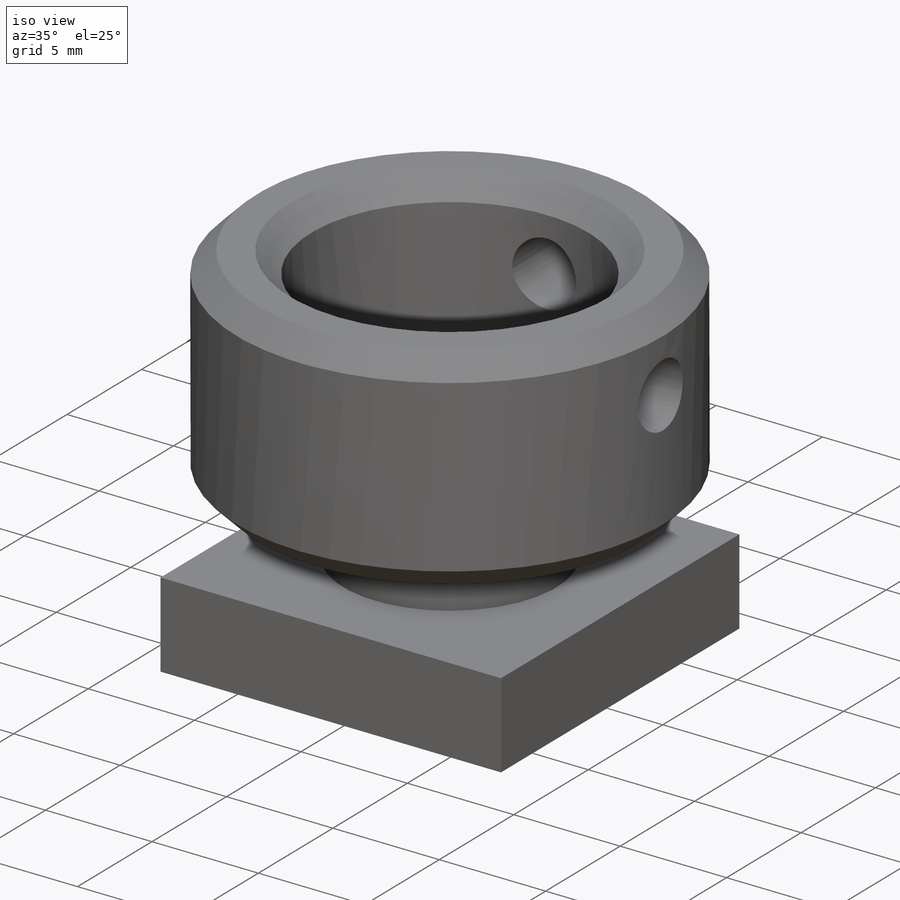
[diagram: iso view]
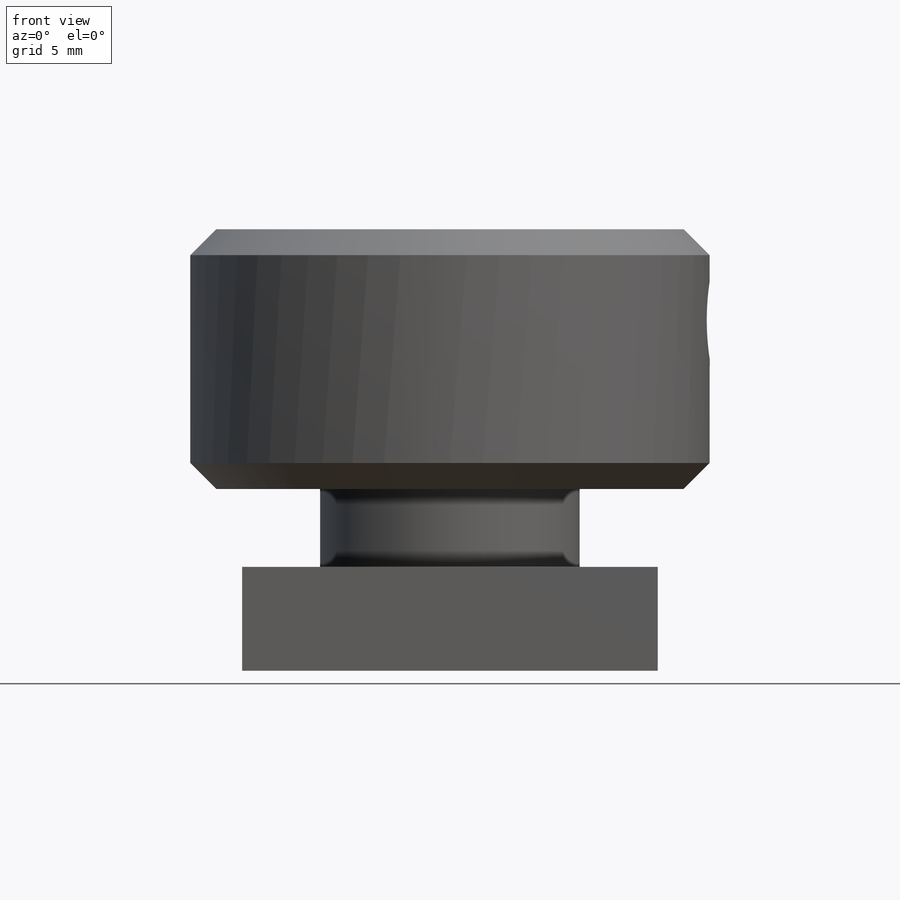
[diagram: front view]
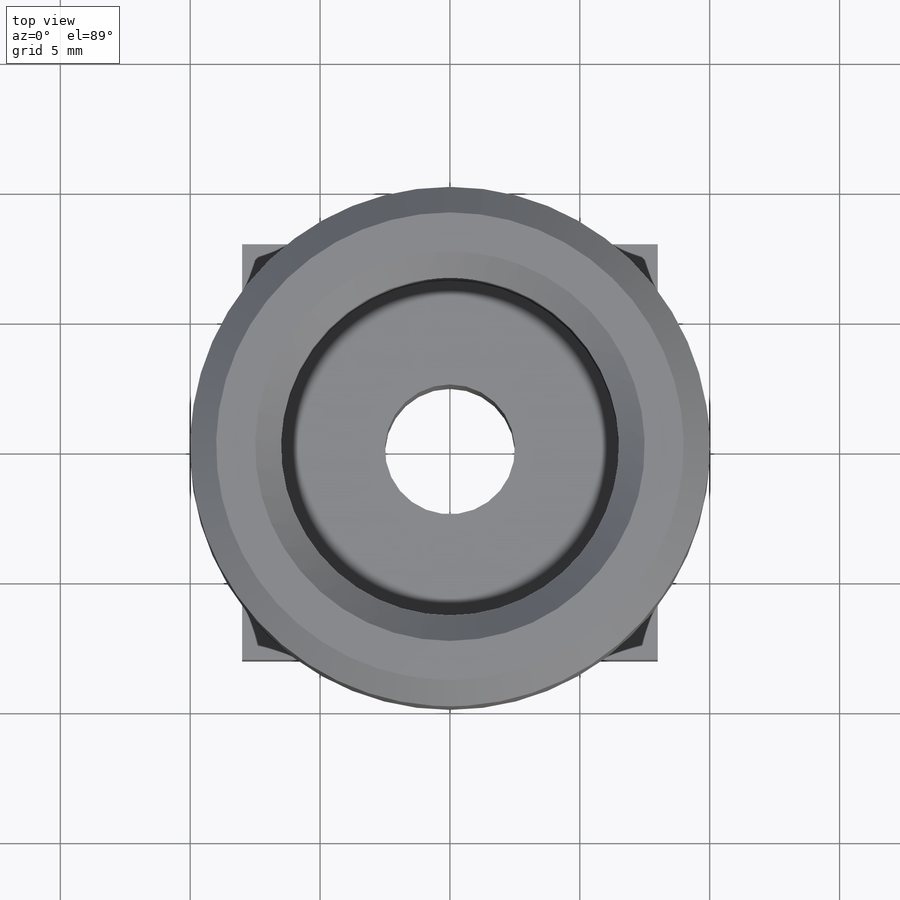
[diagram: top view]
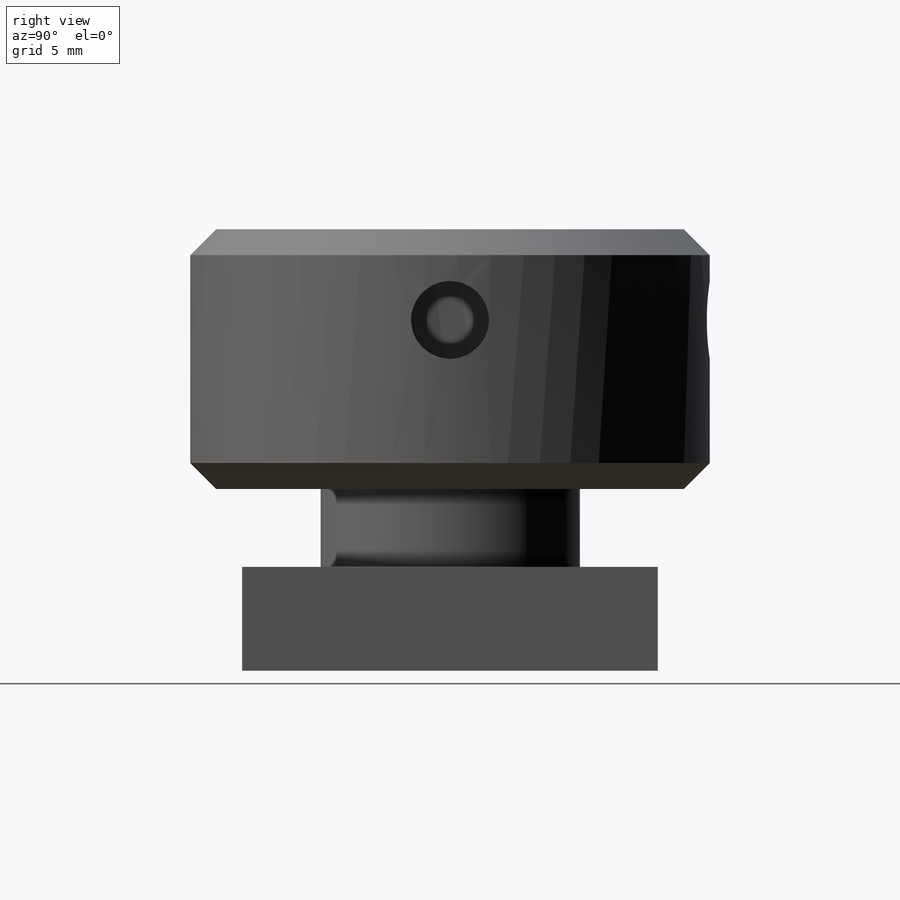
[diagram: right view]
SOLIDWORKS PART (.sldprt)
format: sldprt  version: not decoded by parser v0  size: 223,232 bytes
history: native  units: mm
features: sketch x4, chamfer x2, material x1, revolve x1, hole x1, extrude x1 (+15 scaffold rows collapsed)
feature tree (25):
  scaffold x15  (default folders/planes/origin — collapsed)
  material  "1060 Alloy"
  sketch  "Sketch1"  dims[c1.D1=2.5mm c1.D2=9.0mm c1.D3=4.0mm c1.D4=3.0mm c1.D5=5.0mm c1.D6=8.0mm c1.D7=6.5mm c1.D8=10.0mm c1.D9=5.0mm c2.D2=3.0mm c2.D10=2.0mm c2.D9=7.0mm]
  revolve  "Revolve1"  Angle=360deg
  hole  "Ø3.0 (3) Diameter Hole1"  Diameter=3mm Depth=12mm
  sketch  "3DSketch1"  dims[D1=3.5mm D2=3.5mm]
  sketch  "Sketch3"  dims[hole-wizard template sketch: 47 standard entries collapsed; hole parameters kept: c15.Hole Depth=12.0mm c15.D3=~14.816244mm c15.Drill Angle=118.0deg]
  chamfer  "Chamfer1"  Distance=1mm Angle=45deg
  chamfer  "Chamfer2"  Distance=1mm Angle=45deg
  sketch  "Sketch4"
  extrude  "Extrude1"  [1 undecoded]
decode coverage: 7 of 9 modeling features carry decoded parameters
note: ~ marks probable driven/reference dimensions
note: 1 parameter value undecoded
note: suppression state not decoded; provenance and decode notes live in map.json
